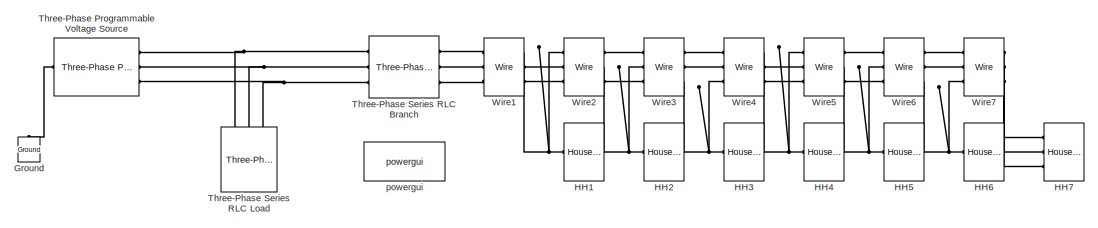
[diagram: root canvas - part 1/3, top center region]
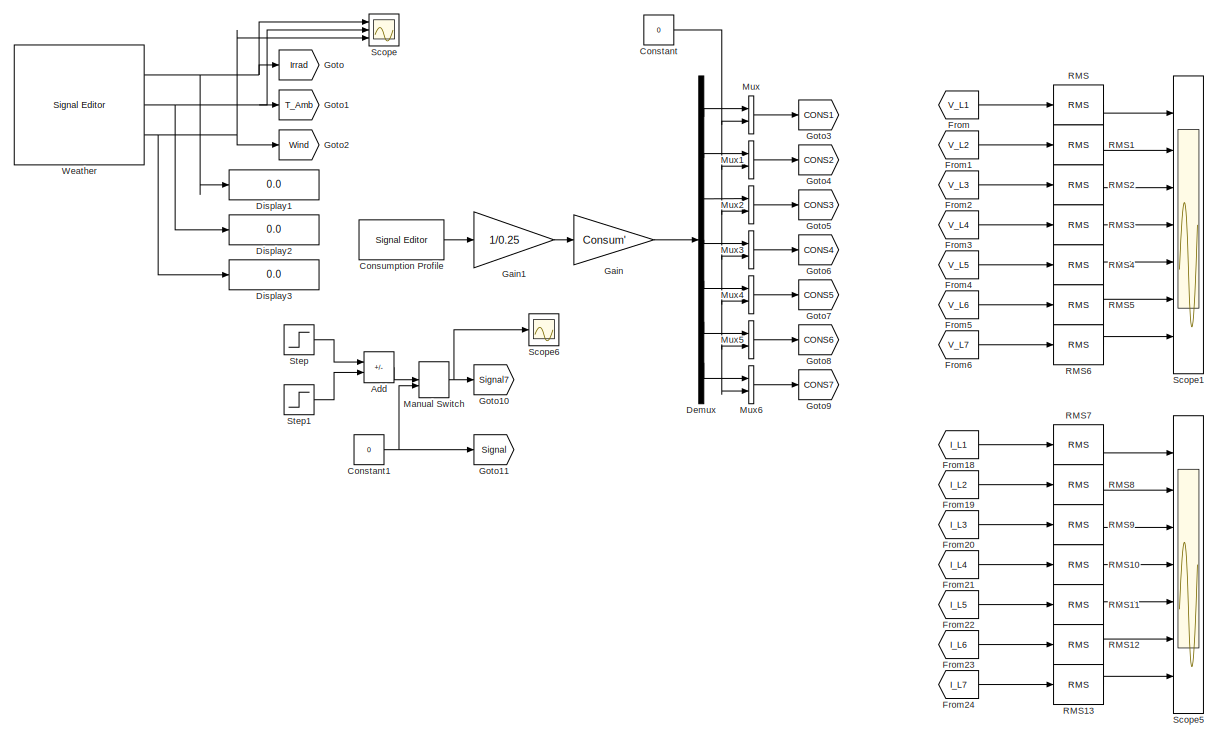
[diagram: root canvas - part 2/3, center side, full height]
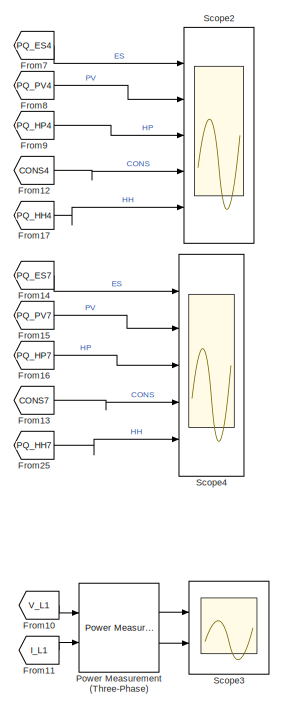
[diagram: root canvas - part 3/3, middle right region]
MODEL slx_aa10e103d19f
KIND model
CONFIG AbsTol = auto
CONFIG EnableMultiTasking = off
CONFIG FixedStep = 1e-4
CONFIG MaxStep = auto
CONFIG MinStep = auto
CONFIG RelTol = 1e-3
CONFIG SampleTimeConstraint = Unconstrained
CONFIG SolverName = ode1be
CONFIG StartTime = 0.0
CONFIG StopTime = 1.5
WORKSPACE source: mxarray member
WORKSPACE Consum = [12000 18000 24000 30000 36000 42000 48000]
BLOCK [Sum] Add
  IconShape = rectangular
  Inputs = +-
  Ports = [2, 1]
BLOCK [Constant] Constant
  Value = 0
BLOCK [Constant] Constant1
  Value = 0
BLOCK [Reference] Consumption Profile  REF=SignalEditorBlockLib/Signal Editor
  Ports = [0, 1]
  SourceBlock = SignalEditorBlockLib/Signal Editor
  SourceProductBaseCode = SL
  SourceType = SignalEditor
  UserDataPersistent = on
BLOCK [Demux] Demux
  Outputs = 7
  Ports = [1, 7]
BLOCK [Display] Display1
  Decimation = 1
  Ports = [1]
BLOCK [Display] Display2
  Decimation = 1
  Ports = [1]
BLOCK [Display] Display3
  Decimation = 1
  Ports = [1]
BLOCK [From] From
  GotoTag = V_L1
  TagVisibility = global
BLOCK [From] From1
  GotoTag = V_L2
  TagVisibility = global
BLOCK [From] From10
  GotoTag = V_L1
  TagVisibility = global
BLOCK [From] From11
  GotoTag = I_L1
  TagVisibility = global
BLOCK [From] From12
  GotoTag = CONS4
  TagVisibility = global
BLOCK [From] From13
  GotoTag = CONS7
  TagVisibility = global
BLOCK [From] From14
  GotoTag = PQ_ES7
  TagVisibility = global
BLOCK [From] From15
  GotoTag = PQ_PV7
  TagVisibility = global
BLOCK [From] From16
  GotoTag = PQ_HP7
  TagVisibility = global
BLOCK [From] From17
  GotoTag = PQ_HH4
  TagVisibility = global
BLOCK [From] From18
  GotoTag = I_L1
  TagVisibility = global
BLOCK [From] From19
  GotoTag = I_L2
  TagVisibility = global
BLOCK [From] From2
  GotoTag = V_L3
  TagVisibility = global
BLOCK [From] From20
  GotoTag = I_L3
  TagVisibility = global
BLOCK [From] From21
  GotoTag = I_L4
  TagVisibility = global
BLOCK [From] From22
  GotoTag = I_L5
  TagVisibility = global
BLOCK [From] From23
  GotoTag = I_L6
  TagVisibility = global
BLOCK [From] From24
  GotoTag = I_L7
  TagVisibility = global
BLOCK [From] From25
  GotoTag = PQ_HH7
  TagVisibility = global
BLOCK [From] From3
  GotoTag = V_L4
  TagVisibility = global
BLOCK [From] From4
  GotoTag = V_L5
  TagVisibility = global
BLOCK [From] From5
  GotoTag = V_L6
  TagVisibility = global
BLOCK [From] From6
  GotoTag = V_L7
  TagVisibility = global
BLOCK [From] From7
  GotoTag = PQ_ES4
  TagVisibility = global
BLOCK [From] From8
  GotoTag = PQ_PV4
  TagVisibility = global
BLOCK [From] From9
  GotoTag = PQ_HP4
  TagVisibility = global
BLOCK [Gain] Gain
  Gain = Consum'
BLOCK [Gain] Gain1
  Gain = 1/0.25
BLOCK [Goto] Goto
  GotoTag = Irrad
  TagVisibility = global
BLOCK [Goto] Goto1
  GotoTag = T_Amb
  TagVisibility = global
BLOCK [Goto] Goto10
  GotoTag = Signal7
  TagVisibility = global
BLOCK [Goto] Goto11
  GotoTag = Signal
  TagVisibility = global
BLOCK [Goto] Goto2
  GotoTag = Wind
  TagVisibility = global
BLOCK [Goto] Goto3
  GotoTag = CONS1
  TagVisibility = global
BLOCK [Goto] Goto4
  GotoTag = CONS2
  TagVisibility = global
BLOCK [Goto] Goto5
  GotoTag = CONS3
  TagVisibility = global
BLOCK [Goto] Goto6
  GotoTag = CONS4
  TagVisibility = global
BLOCK [Goto] Goto7
  GotoTag = CONS5
  TagVisibility = global
BLOCK [Goto] Goto8
  GotoTag = CONS6
  TagVisibility = global
BLOCK [Goto] Goto9
  GotoTag = CONS7
  TagVisibility = global
BLOCK [Reference] Ground  REF=spsGroundLib/Ground
  NameLocation = right
  Ports = [0, 0, 0, 0, 0, 1]
  SourceBlock = spsGroundLib/Ground
  SourceProductBaseCode = PS
  SourceType = Ground
BLOCK [Reference] HH1  REF=kif2/Household  (lib defined in slx_8baa95f9d146)
(Single Phase)
  Ports = [0, 0, 0, 0, 0, 1]
  SourceBlock = kif2/Household\n(Single Phase)
  SourceProductName = KIF2 Library
  SourceType = Household (Single Phase)
BLOCK [Reference] HH2  REF=kif2/Household  (lib defined in slx_8baa95f9d146)
(Single Phase)
  Ports = [0, 0, 0, 0, 0, 1]
  SourceBlock = kif2/Household\n(Single Phase)
  SourceProductName = KIF2 Library
  SourceType = Household (Single Phase)
BLOCK [Reference] HH3  REF=kif2/Household  (lib defined in slx_8baa95f9d146)
(Single Phase)
  Ports = [0, 0, 0, 0, 0, 1]
  SourceBlock = kif2/Household\n(Single Phase)
  SourceProductName = KIF2 Library
  SourceType = Household (Single Phase)
BLOCK [Reference] HH4  REF=kif2/Household  (lib defined in slx_8baa95f9d146)
(Single Phase)
  Ports = [0, 0, 0, 0, 0, 1]
  SourceBlock = kif2/Household\n(Single Phase)
  SourceProductName = KIF2 Library
  SourceType = Household (Single Phase)
BLOCK [Reference] HH5  REF=kif2/Household  (lib defined in slx_8baa95f9d146)
(Single Phase)
  Ports = [0, 0, 0, 0, 0, 1]
  SourceBlock = kif2/Household\n(Single Phase)
  SourceProductName = KIF2 Library
  SourceType = Household (Single Phase)
BLOCK [Reference] HH6  REF=kif2/Household  (lib defined in slx_8baa95f9d146)
(Single Phase)
  Ports = [0, 0, 0, 0, 0, 1]
  SourceBlock = kif2/Household\n(Single Phase)
  SourceProductName = KIF2 Library
  SourceType = Household (Single Phase)
BLOCK [Reference] HH7  REF=kif2/Household  (lib defined in slx_8baa95f9d146)
  Ports = [0, 0, 0, 0, 0, 3]
  SourceBlock = kif2/Household
  SourceProductName = KIF2 Library
  SourceType = Household (Three Phase)
BLOCK [ManualSwitch] Manual Switch
BLOCK [RealImagToComplex] Mux
  Ports = [2, 1]
BLOCK [RealImagToComplex] Mux1
  Ports = [2, 1]
BLOCK [RealImagToComplex] Mux2
  Ports = [2, 1]
BLOCK [RealImagToComplex] Mux3
  Ports = [2, 1]
BLOCK [RealImagToComplex] Mux4
  Ports = [2, 1]
BLOCK [RealImagToComplex] Mux5
  Ports = [2, 1]
BLOCK [RealImagToComplex] Mux6
  Ports = [2, 1]
BLOCK [Reference] Power Measurement (Three-Phase)  REF=eePowerMeasurement/Power Measurement
(Three-Phase)
  Ports = [2, 2]
  SourceBlock = eePowerMeasurement/Power Measurement\n(Three-Phase)
  SourceProductBaseCode = PS
  SourceType = Power Measurement (Three-Phase)
BLOCK [Reference] RMS  REF=spsRMSLib/RMS
  Ports = [1, 1]
  SourceBlock = spsRMSLib/RMS
  SourceProductBaseCode = PS
  SourceType = RMS
BLOCK [Reference] RMS1  REF=spsRMSLib/RMS
  Ports = [1, 1]
  SourceBlock = spsRMSLib/RMS
  SourceProductBaseCode = PS
  SourceType = RMS
BLOCK [Reference] RMS10  REF=spsRMSLib/RMS
  Ports = [1, 1]
  SourceBlock = spsRMSLib/RMS
  SourceProductBaseCode = PS
  SourceType = RMS
BLOCK [Reference] RMS11  REF=spsRMSLib/RMS
  Ports = [1, 1]
  SourceBlock = spsRMSLib/RMS
  SourceProductBaseCode = PS
  SourceType = RMS
BLOCK [Reference] RMS12  REF=spsRMSLib/RMS
  Ports = [1, 1]
  SourceBlock = spsRMSLib/RMS
  SourceProductBaseCode = PS
  SourceType = RMS
BLOCK [Reference] RMS13  REF=spsRMSLib/RMS
  Ports = [1, 1]
  SourceBlock = spsRMSLib/RMS
  SourceProductBaseCode = PS
  SourceType = RMS
BLOCK [Reference] RMS2  REF=spsRMSLib/RMS
  Ports = [1, 1]
  SourceBlock = spsRMSLib/RMS
  SourceProductBaseCode = PS
  SourceType = RMS
BLOCK [Reference] RMS3  REF=spsRMSLib/RMS
  Ports = [1, 1]
  SourceBlock = spsRMSLib/RMS
  SourceProductBaseCode = PS
  SourceType = RMS
BLOCK [Reference] RMS4  REF=spsRMSLib/RMS
  Ports = [1, 1]
  SourceBlock = spsRMSLib/RMS
  SourceProductBaseCode = PS
  SourceType = RMS
BLOCK [Reference] RMS5  REF=spsRMSLib/RMS
  Ports = [1, 1]
  SourceBlock = spsRMSLib/RMS
  SourceProductBaseCode = PS
  SourceType = RMS
BLOCK [Reference] RMS6  REF=spsRMSLib/RMS
  Ports = [1, 1]
  SourceBlock = spsRMSLib/RMS
  SourceProductBaseCode = PS
  SourceType = RMS
BLOCK [Reference] RMS7  REF=spsRMSLib/RMS
  Ports = [1, 1]
  SourceBlock = spsRMSLib/RMS
  SourceProductBaseCode = PS
  SourceType = RMS
BLOCK [Reference] RMS8  REF=spsRMSLib/RMS
  Ports = [1, 1]
  SourceBlock = spsRMSLib/RMS
  SourceProductBaseCode = PS
  SourceType = RMS
BLOCK [Reference] RMS9  REF=spsRMSLib/RMS
  Ports = [1, 1]
  SourceBlock = spsRMSLib/RMS
  SourceProductBaseCode = PS
  SourceType = RMS
BLOCK [Scope] Scope
  Floating = off
  NumInputPorts = 3
  Ports = [3]
  ScopeSpecificationString = Simulink.scopes.TimeScopeBlockCfg('CurrentConfiguration', extmgr.ConfigurationSet(extmgr.Configuration('Core','General UI',true),extmgr.Configuration('Core','Source UI',true),extmgr.Configuration('Sources','WiredSimulink',true,'DataLoggingVariableName','ScopeData1'),extmgr.Configuration('Visuals','Time Domain',true,'SerializedDisplays',{struct('MinYLimReal','-39.46721','MaxYLimReal','355.20491','Y...<+2766ch>
BLOCK [Scope] Scope1
  Floating = off
  NumInputPorts = 7
  Ports = [7]
  ScopeSpecificationString = Simulink.scopes.TimeScopeBlockCfg('CurrentConfiguration', extmgr.ConfigurationSet(extmgr.Configuration('Core','General UI',true,'FigureColor',[0 0 0]),extmgr.Configuration('Core','Source UI',true),extmgr.Configuration('Sources','WiredSimulink',true,'DataLoggingVariableName','Vprofile','DataLogging',true,'DataLoggingMaxPoints','10000','DataLoggingDecimateData',true,'DataLoggingDecimation','500'),ex...<+6594ch>
BLOCK [Scope] Scope2
  Floating = off
  NumInputPorts = 5
  Ports = [5]
  ScopeSpecificationString = Simulink.scopes.TimeScopeBlockCfg('CurrentConfiguration', extmgr.ConfigurationSet(extmgr.Configuration('Core','General UI',true),extmgr.Configuration('Core','Source UI',true),extmgr.Configuration('Sources','WiredSimulink',true,'DataLoggingVariableName','ScopeData3'),extmgr.Configuration('Visuals','Time Domain',true,'SerializedDisplays',{struct('MinYLimReal','-11473.54841','MaxYLimReal','8189.53572...<+5229ch>
BLOCK [Scope] Scope3
  Floating = off
  NumInputPorts = 2
  Ports = [2]
  ScopeSpecificationString = Simulink.scopes.TimeScopeBlockCfg('CurrentConfiguration', extmgr.ConfigurationSet(extmgr.Configuration('Core','General UI',true),extmgr.Configuration('Core','Source UI',true),extmgr.Configuration('Sources','WiredSimulink',true,'DataLoggingVariableName','ScopeData4'),extmgr.Configuration('Visuals','Time Domain',true,'SerializedDisplays',{struct('MinYLimReal','-6449.80087','MaxYLimReal','9935.00542'...<+1550ch>
BLOCK [Scope] Scope4
  Floating = off
  NumInputPorts = 5
  Ports = [5]
  ScopeSpecificationString = Simulink.scopes.TimeScopeBlockCfg('CurrentConfiguration', extmgr.ConfigurationSet(extmgr.Configuration('Core','General UI',true),extmgr.Configuration('Core','Source UI',true),extmgr.Configuration('Sources','WiredSimulink',true),extmgr.Configuration('Visuals','Time Domain',true,'SerializedDisplays',{struct('MinYLimReal','-242250.00000','MaxYLimReal','242250.00000','YLabelReal','','MinYLimMag','    ...<+4999ch>
BLOCK [Scope] Scope5
  Floating = off
  NumInputPorts = 7
  Ports = [7]
  ScopeSpecificationString = Simulink.scopes.TimeScopeBlockCfg('CurrentConfiguration', extmgr.ConfigurationSet(extmgr.Configuration('Core','General UI',true,'FigureColor',[0 0 0]),extmgr.Configuration('Core','Source UI',true),extmgr.Configuration('Sources','WiredSimulink',true,'DataLoggingVariableName','Iprofile','DataLogging',true,'DataLoggingMaxPoints','10000','DataLoggingDecimateData',true,'DataLoggingDecimation','500'),ex...<+6611ch>
BLOCK [Scope] Scope6
  Floating = off
  NumInputPorts = 1
  Ports = [1]
  ScopeSpecificationString = Simulink.scopes.TimeScopeBlockCfg('CurrentConfiguration', extmgr.ConfigurationSet(extmgr.Configuration('Core','General UI',true),extmgr.Configuration('Core','Source UI',true),extmgr.Configuration('Sources','WiredSimulink',true,'DataLoggingVariableName','ScopeData1'),extmgr.Configuration('Visuals','Time Domain',true,'SerializedDisplays',{struct('MinYLimReal','-1.125','MaxYLimReal','0.125','YLabelRe...<+1360ch>
BLOCK [Step] Step
  After = -1
  SampleTime = 0
  Time = 0.5
BLOCK [Step] Step1
  After = -1
  SampleTime = 0
BLOCK [Reference] Three-Phase Programmable Voltage Source  REF=spsThreePhaseProgrammableVoltageSourceLib/Three-Phase
Programmable
Voltage Source
  Ports = [0, 0, 0, 0, 0, 1, 3]
  SourceBlock = spsThreePhaseProgrammableVoltageSourceLib/Three-Phase\nProgrammable\nVoltage Source
  SourceProductBaseCode = PS
  SourceType = Three-Phase Programmable Voltage Source
BLOCK [Reference] Three-Phase Series RLC Branch  REF=spsThreePhaseSeriesRLCBranchLib/Three-Phase
Series RLC Branch
  AttributesFormatString = \n
  Ports = [0, 0, 0, 0, 0, 3, 3]
  SourceBlock = spsThreePhaseSeriesRLCBranchLib/Three-Phase\nSeries RLC Branch
  SourceProductBaseCode = PS
  SourceType = Three-Phase Series RLC Branch
BLOCK [Reference] Three-Phase Series RLC Load  REF=spsThreePhaseSeriesRLCLoadLib/Three-Phase
Series RLC Load
  AttributesFormatString = \n
  Ports = [0, 0, 0, 0, 0, 3]
  SourceBlock = spsThreePhaseSeriesRLCLoadLib/Three-Phase\nSeries RLC Load
  SourceProductBaseCode = PS
  SourceType = Three-Phase Series RLC Load
BLOCK [Reference] Weather  REF=SignalEditorBlockLib/Signal Editor
  Ports = [0, 3]
  SourceBlock = SignalEditorBlockLib/Signal Editor
  SourceProductBaseCode = SL
  SourceType = SignalEditor
  UserDataPersistent = on
BLOCK [Reference] Wire1  REF=kif2/Wire  (lib defined in slx_8baa95f9d146)
  Ports = [0, 0, 0, 0, 0, 3, 3]
  SourceBlock = kif2/Wire
  SourceProductName = KIF2 Library
  SourceType = Three-Phase Low Voltage Distribution Line
BLOCK [Reference] Wire2  REF=kif2/Wire  (lib defined in slx_8baa95f9d146)
  Ports = [0, 0, 0, 0, 0, 3, 3]
  SourceBlock = kif2/Wire
  SourceProductName = KIF2 Library
  SourceType = Three-Phase Low Voltage Distribution Line
BLOCK [Reference] Wire3  REF=kif2/Wire  (lib defined in slx_8baa95f9d146)
  Ports = [0, 0, 0, 0, 0, 3, 3]
  SourceBlock = kif2/Wire
  SourceProductName = KIF2 Library
  SourceType = Three-Phase Low Voltage Distribution Line
BLOCK [Reference] Wire4  REF=kif2/Wire  (lib defined in slx_8baa95f9d146)
  Ports = [0, 0, 0, 0, 0, 3, 3]
  SourceBlock = kif2/Wire
  SourceProductName = KIF2 Library
  SourceType = Three-Phase Low Voltage Distribution Line
BLOCK [Reference] Wire5  REF=kif2/Wire  (lib defined in slx_8baa95f9d146)
  Ports = [0, 0, 0, 0, 0, 3, 3]
  SourceBlock = kif2/Wire
  SourceProductName = KIF2 Library
  SourceType = Three-Phase Low Voltage Distribution Line
BLOCK [Reference] Wire6  REF=kif2/Wire  (lib defined in slx_8baa95f9d146)
  Ports = [0, 0, 0, 0, 0, 3, 3]
  SourceBlock = kif2/Wire
  SourceProductName = KIF2 Library
  SourceType = Three-Phase Low Voltage Distribution Line
BLOCK [Reference] Wire7  REF=kif2/Wire  (lib defined in slx_8baa95f9d146)
  Ports = [0, 0, 0, 0, 0, 3, 3]
  SourceBlock = kif2/Wire
  SourceProductName = KIF2 Library
  SourceType = Three-Phase Low Voltage Distribution Line
BLOCK [Reference] powergui  REF=spspowerguiLib/powergui
  Ports = []
  Priority = 1
  SourceBlock = spspowerguiLib/powergui
  SourceProductBaseCode = PS
  SourceType = PSB option menu block
LINE Add:1 -> Manual Switch:1
NET Constant1:1 -> Goto11:1, Manual Switch:2
NET Constant:1 -> Mux1:2, Mux2:2, Mux3:2, Mux4:2, Mux5:2, Mux6:2, Mux:2
LINE Consumption Profile:1 -> Gain1:1
LINE Demux:1 -> Mux:1
LINE Demux:2 -> Mux1:1
LINE Demux:3 -> Mux2:1
LINE Demux:4 -> Mux3:1
LINE Demux:5 -> Mux4:1
LINE Demux:6 -> Mux5:1
LINE Demux:7 -> Mux6:1
LINE From10:1 -> Power Measurement (Three-Phase):1
LINE From11:1 -> Power Measurement (Three-Phase):2
LINE From12:1 -> Scope2:4
LINE From13:1 -> Scope4:4
LINE From14:1 -> Scope4:1
LINE From15:1 -> Scope4:2
LINE From16:1 -> Scope4:3
LINE From17:1 -> Scope2:5
LINE From18:1 -> RMS7:1
LINE From19:1 -> RMS8:1
LINE From1:1 -> RMS1:1
LINE From20:1 -> RMS9:1
LINE From21:1 -> RMS10:1
LINE From22:1 -> RMS11:1
LINE From23:1 -> RMS12:1
LINE From24:1 -> RMS13:1
LINE From25:1 -> Scope4:5
LINE From2:1 -> RMS2:1
LINE From3:1 -> RMS3:1
LINE From4:1 -> RMS4:1
LINE From5:1 -> RMS5:1
LINE From6:1 -> RMS6:1
LINE From7:1 -> Scope2:1
LINE From8:1 -> Scope2:2
LINE From9:1 -> Scope2:3
LINE From:1 -> RMS:1
LINE Gain1:1 -> Gain:1
LINE Gain:1 -> Demux:1
NET Manual Switch:1 -> Goto10:1, Scope6:1
LINE Mux1:1 -> Goto4:1
LINE Mux2:1 -> Goto5:1
LINE Mux3:1 -> Goto6:1
LINE Mux4:1 -> Goto7:1
LINE Mux5:1 -> Goto8:1
LINE Mux6:1 -> Goto9:1
LINE Mux:1 -> Goto3:1
LINE Power Measurement (Three-Phase):1 -> Scope3:1
LINE Power Measurement (Three-Phase):2 -> Scope3:2
LINE RMS10:1 -> Scope5:4
LINE RMS11:1 -> Scope5:5
LINE RMS12:1 -> Scope5:6
LINE RMS13:1 -> Scope5:7
LINE RMS1:1 -> Scope1:2
LINE RMS2:1 -> Scope1:3
LINE RMS3:1 -> Scope1:4
LINE RMS4:1 -> Scope1:5
LINE RMS5:1 -> Scope1:6
LINE RMS6:1 -> Scope1:7
LINE RMS7:1 -> Scope5:1
LINE RMS8:1 -> Scope5:2
LINE RMS9:1 -> Scope5:3
LINE RMS:1 -> Scope1:1
LINE Step1:1 -> Add:2
LINE Step:1 -> Add:1
NET Weather:1 -> Display1:1, Goto:1, Scope:1
NET Weather:2 -> Display2:1, Goto1:1, Scope:2
NET Weather:3 -> Display3:1, Goto2:1, Scope:3
PLINE Ground:LConn1 -- Three-Phase Programmable Voltage Source:LConn1
PNET net1: HH1:LConn1 -- Wire1:RConn1 -- Wire2:LConn1
PNET net2: HH2:LConn1 -- Wire2:RConn2 -- Wire3:LConn2
PNET net3: HH3:LConn1 -- Wire3:RConn3 -- Wire4:LConn3
PNET net4: HH4:LConn1 -- Wire4:RConn1 -- Wire5:LConn1
PNET net5: HH5:LConn1 -- Wire5:RConn2 -- Wire6:LConn2
PNET net6: HH6:LConn1 -- Wire6:RConn3 -- Wire7:LConn3
PLINE HH7:LConn1 -- Wire7:RConn1
PLINE HH7:LConn2 -- Wire7:RConn2
PLINE HH7:LConn3 -- Wire7:RConn3
PNET net7: Three-Phase Programmable Voltage Source:RConn1 -- Three-Phase Series RLC Branch:LConn1 -- Three-Phase Series RLC Load:LConn1
PNET net8: Three-Phase Programmable Voltage Source:RConn2 -- Three-Phase Series RLC Branch:LConn2 -- Three-Phase Series RLC Load:LConn2
PNET net9: Three-Phase Programmable Voltage Source:RConn3 -- Three-Phase Series RLC Branch:LConn3 -- Three-Phase Series RLC Load:LConn3
PLINE Three-Phase Series RLC Branch:RConn1 -- Wire1:LConn1
PLINE Three-Phase Series RLC Branch:RConn2 -- Wire1:LConn2
PLINE Three-Phase Series RLC Branch:RConn3 -- Wire1:LConn3
PLINE Wire1:RConn2 -- Wire2:LConn2
PLINE Wire1:RConn3 -- Wire2:LConn3
PLINE Wire2:RConn1 -- Wire3:LConn1
PLINE Wire2:RConn3 -- Wire3:LConn3
PLINE Wire3:RConn1 -- Wire4:LConn1
PLINE Wire3:RConn2 -- Wire4:LConn2
PLINE Wire4:RConn2 -- Wire5:LConn2
PLINE Wire4:RConn3 -- Wire5:LConn3
PLINE Wire5:RConn1 -- Wire6:LConn1
PLINE Wire5:RConn3 -- Wire6:LConn3
PLINE Wire6:RConn1 -- Wire7:LConn1
PLINE Wire6:RConn2 -- Wire7:LConn2
note: NET lines group one-source signal fan-out (src -> all destinations, sorted); 1:1 wires keep LINE; PNET lines group multi-terminal physical nets as a canonical sorted terminal list (undirected conserving connections); 2-terminal nets keep the pairwise PLINE form
